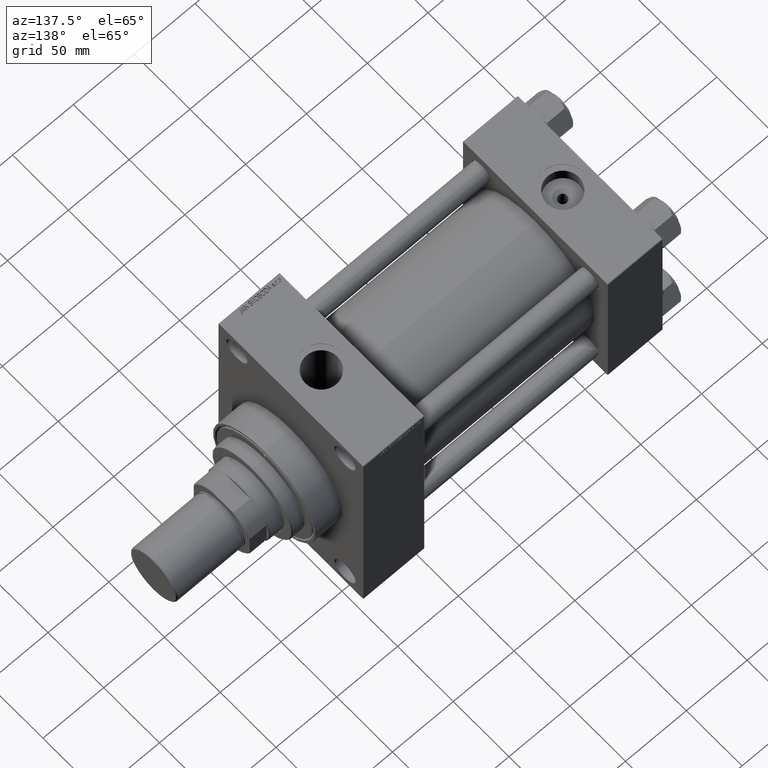
[diagram: clean part render]
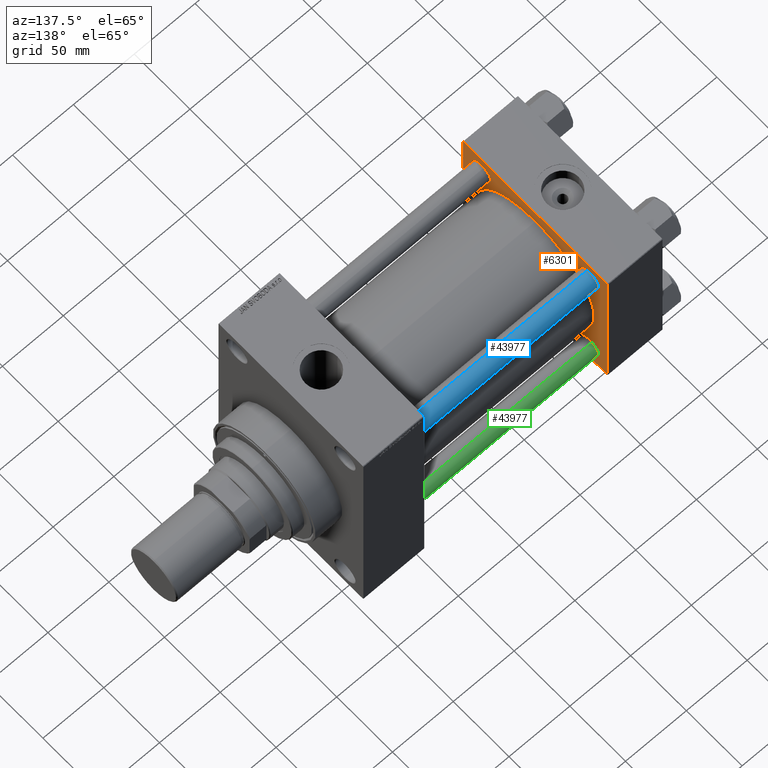
[diagram: same view with three faces highlighted in distinct colors, each labeled with its STEP entity id]
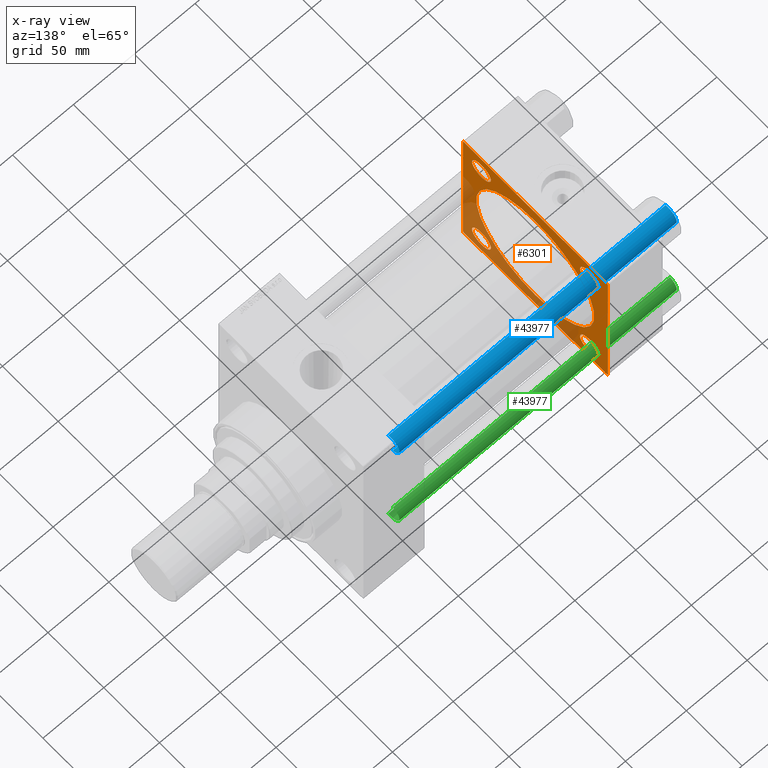
[diagram: x-ray of the same camera — body ghosted, the three highlighted faces saturated]
A machine part, auxiliary view with three faces highlighted in distinct colors.
The next image is the same camera in x-ray (body ghosted, the three faces saturated) — at least one of them is partly hidden behind the body in this view.
Their STEP definitions:

[orange] entity #6301 — the highlighted planar face has unit normal (-1, 0, 0).
#683 = LINE ( 'NONE', #19280, #10534 ) ;
#756 = ORIENTED_EDGE ( 'NONE', *, *, #30559, .T. ) ;
#878 = EDGE_LOOP ( 'NONE', ( #11257, #29567 ) ) ;
#1114 = CIRCLE ( 'NONE', #47246, 8.500000000000007105 ) ;
#1420 = AXIS2_PLACEMENT_3D ( 'NONE', #7972, #26102, #29785 ) ;
#1934 = ORIENTED_EDGE ( 'NONE', *, *, #6677, .T. ) ;
#2078 = VERTEX_POINT ( 'NONE', #14411 ) ;
#2269 = DIRECTION ( 'NONE',  ( -1.000000000000000000, 0.000000000000000000, -0.000000000000000000 ) ) ;
#2359 = CARTESIAN_POINT ( 'NONE',  ( 45.00000000000000000, 0.000000000000000000, 0.000000000000000000 ) ) ;
#2929 = DIRECTION ( 'NONE',  ( 0.000000000000000000, 0.7071067811865279218, -0.7071067811865671127 ) ) ;
#3026 = DIRECTION ( 'NONE',  ( 0.000000000000000000, 0.000000000000000000, -1.000000000000000000 ) ) ;
#3093 = FACE_OUTER_BOUND ( 'NONE', #40931, .T. ) ;
#3306 = VERTEX_POINT ( 'NONE', #29532 ) ;
#3805 = CARTESIAN_POINT ( 'NONE',  ( 45.00000000000000000, -48.44999999999999574, -48.45000000000003126 ) ) ;
#4105 = AXIS2_PLACEMENT_3D ( 'NONE', #17351, #25669, #6589 ) ;
#4269 = VERTEX_POINT ( 'NONE', #40021 ) ;
#4276 = CARTESIAN_POINT ( 'NONE',  ( 45.00000000000000000, -65.00000000000000000, 64.50000000000000000 ) ) ;
#4279 = VERTEX_POINT ( 'NONE', #28753 ) ;
#4306 = VERTEX_POINT ( 'NONE', #13081 ) ;
#4801 = EDGE_LOOP ( 'NONE', ( #7513, #8639 ) ) ;
#5203 = DIRECTION ( 'NONE',  ( 0.000000000000000000, -1.000000000000000000, -1.067522139062650425E-16 ) ) ;
#5531 = VERTEX_POINT ( 'NONE', #15472 ) ;
#5582 = VERTEX_POINT ( 'NONE', #36018 ) ;
#6301 = ADVANCED_FACE ( 'NONE', ( #47148, #40790, #22165, #6525, #14114, #3093 ), #47395, .F. ) ;
#6525 = FACE_BOUND ( 'NONE', #18172, .T. ) ;
#6589 = DIRECTION ( 'NONE',  ( 0.000000000000000000, 0.000000000000000000, 1.000000000000000000 ) ) ;
#6677 = EDGE_CURVE ( 'NONE', #5531, #5582, #8149, .T. ) ;
#6914 = DIRECTION ( 'NONE',  ( 0.000000000000000000, 0.000000000000000000, 1.000000000000000000 ) ) ;
#7264 = VECTOR ( 'NONE', #25244, 1000.000000000000114 ) ;
#7513 = ORIENTED_EDGE ( 'NONE', *, *, #23552, .T. ) ;
#7764 = CARTESIAN_POINT ( 'NONE',  ( 44.99999999999998579, -2.602085213965210642E-15, 0.000000000000000000 ) ) ;
#7885 = DIRECTION ( 'NONE',  ( 0.000000000000000000, 0.000000000000000000, 1.000000000000000000 ) ) ;
#7946 = LINE ( 'NONE', #4276, #30898 ) ;
#7972 = CARTESIAN_POINT ( 'NONE',  ( 45.00000000000000000, 48.45000000000000995, -48.45000000000001705 ) ) ;
#8046 = ORIENTED_EDGE ( 'NONE', *, *, #10780, .T. ) ;
#8149 = CIRCLE ( 'NONE', #13651, 8.500000000000007105 ) ;
#8231 = ORIENTED_EDGE ( 'NONE', *, *, #29336, .F. ) ;
#8617 = AXIS2_PLACEMENT_3D ( 'NONE', #15078, #11405, #48376 ) ;
#8639 = ORIENTED_EDGE ( 'NONE', *, *, #47282, .T. ) ;
#8886 = AXIS2_PLACEMENT_3D ( 'NONE', #2359, #17286, #13627 ) ;
#8956 = DIRECTION ( 'NONE',  ( -1.000000000000000000, 0.000000000000000000, -0.000000000000000000 ) ) ;
#9197 = CARTESIAN_POINT ( 'NONE',  ( 45.00000000000000000, -48.44999999999999574, -56.95000000000003837 ) ) ;
#9325 = VECTOR ( 'NONE', #20633, 1000.000000000000114 ) ;
#9931 = VECTOR ( 'NONE', #31341, 1000.000000000000000 ) ;
#10268 = EDGE_CURVE ( 'NONE', #18890, #32250, #45971, .T. ) ;
#10534 = VECTOR ( 'NONE', #34227, 1000.000000000000000 ) ;
#10621 = CARTESIAN_POINT ( 'NONE',  ( 45.00000000000000000, -65.00000000000000000, 65.00000000000000000 ) ) ;
#10780 = EDGE_CURVE ( 'NONE', #45149, #48216, #23804, .T. ) ;
#11083 = CARTESIAN_POINT ( 'NONE',  ( 45.00000000000000000, 48.45000000000000995, -48.45000000000001705 ) ) ;
#11257 = ORIENTED_EDGE ( 'NONE', *, *, #20853, .F. ) ;
#11365 = AXIS2_PLACEMENT_3D ( 'NONE', #7764, #15590, #18777 ) ;
#11405 = DIRECTION ( 'NONE',  ( -1.000000000000000000, 0.000000000000000000, -0.000000000000000000 ) ) ;
#11800 = DIRECTION ( 'NONE',  ( -1.000000000000000000, 0.000000000000000000, -0.000000000000000000 ) ) ;
#11983 = VERTEX_POINT ( 'NONE', #46989 ) ;
#13081 = CARTESIAN_POINT ( 'NONE',  ( 45.00000000000000000, -48.44999999999999574, -39.95000000000001705 ) ) ;
#13627 = DIRECTION ( 'NONE',  ( -0.000000000000000000, 0.000000000000000000, 1.000000000000000000 ) ) ;
#13651 = AXIS2_PLACEMENT_3D ( 'NONE', #41683, #41205, #19381 ) ;
#14114 = FACE_BOUND ( 'NONE', #878, .T. ) ;
#14354 = CIRCLE ( 'NONE', #33101, 8.500000000000007105 ) ;
#14411 = CARTESIAN_POINT ( 'NONE',  ( 45.00000000000000000, -64.49999999999994316, -65.00000000000000000 ) ) ;
#14477 = LINE ( 'NONE', #47270, #7264 ) ;
#14820 = CARTESIAN_POINT ( 'NONE',  ( 45.00000000000000000, 48.45000000000000995, -56.95000000000002416 ) ) ;
#15078 = CARTESIAN_POINT ( 'NONE',  ( 45.00000000000000000, 48.45000000000000995, 48.45000000000001705 ) ) ;
#15312 = CARTESIAN_POINT ( 'NONE',  ( 45.00000000000000000, -64.49999999999997158, 65.00000000000000000 ) ) ;
#15458 = ORIENTED_EDGE ( 'NONE', *, *, #33869, .T. ) ;
#15472 = CARTESIAN_POINT ( 'NONE',  ( 45.00000000000000000, -48.44999999999999574, 39.95000000000001705 ) ) ;
#15590 = DIRECTION ( 'NONE',  ( 1.000000000000000000, -0.000000000000000000, 0.000000000000000000 ) ) ;
#15740 = CARTESIAN_POINT ( 'NONE',  ( 45.00000000000000000, 65.00000000000000000, 65.00000000000001421 ) ) ;
#16497 = EDGE_LOOP ( 'NONE', ( #47737, #17939 ) ) ;
#16965 = LINE ( 'NONE', #39261, #9325 ) ;
#17286 = DIRECTION ( 'NONE',  ( -1.000000000000000000, 0.000000000000000000, -0.000000000000000000 ) ) ;
#17351 = CARTESIAN_POINT ( 'NONE',  ( 44.99999999999998579, -2.602085213965210642E-15, 0.000000000000000000 ) ) ;
#17939 = ORIENTED_EDGE ( 'NONE', *, *, #19368, .T. ) ;
#18172 = EDGE_LOOP ( 'NONE', ( #19960, #45145 ) ) ;
#18180 = VECTOR ( 'NONE', #3026, 1000.000000000000000 ) ;
#18378 = CIRCLE ( 'NONE', #11365, 53.00000000000000711 ) ;
#18725 = DIRECTION ( 'NONE',  ( -0.000000000000000000, -0.7071067811865672237, -0.7071067811865279218 ) ) ;
#18777 = DIRECTION ( 'NONE',  ( 0.000000000000000000, 0.000000000000000000, 1.000000000000000000 ) ) ;
#18890 = VERTEX_POINT ( 'NONE', #14820 ) ;
#19197 = DIRECTION ( 'NONE',  ( -1.000000000000000000, 0.000000000000000000, -0.000000000000000000 ) ) ;
#19280 = CARTESIAN_POINT ( 'NONE',  ( 45.00000000000000000, 65.00000000000000000, 65.00000000000001421 ) ) ;
#19368 = EDGE_CURVE ( 'NONE', #32250, #18890, #28321, .T. ) ;
#19381 = DIRECTION ( 'NONE',  ( 0.000000000000000000, 0.000000000000000000, 1.000000000000000000 ) ) ;
#19960 = ORIENTED_EDGE ( 'NONE', *, *, #45966, .T. ) ;
#20176 = EDGE_CURVE ( 'NONE', #4279, #21545, #28737, .T. ) ;
#20306 = CARTESIAN_POINT ( 'NONE',  ( 45.00000000000000000, 65.00000000000000000, -64.99999999999998579 ) ) ;
#20569 = EDGE_CURVE ( 'NONE', #11983, #4269, #14477, .T. ) ;
#20573 = ORIENTED_EDGE ( 'NONE', *, *, #43735, .T. ) ;
#20633 = DIRECTION ( 'NONE',  ( 0.000000000000000000, -0.7071067811865474617, 0.7071067811865474617 ) ) ;
#20853 = EDGE_CURVE ( 'NONE', #21040, #3306, #32270, .T. ) ;
#21040 = VERTEX_POINT ( 'NONE', #29709 ) ;
#21530 = CARTESIAN_POINT ( 'NONE',  ( 45.00000000000000000, -64.49999999999994316, -65.00000000000000000 ) ) ;
#21545 = VERTEX_POINT ( 'NONE', #34656 ) ;
#22165 = FACE_BOUND ( 'NONE', #38823, .T. ) ;
#22864 = ORIENTED_EDGE ( 'NONE', *, *, #20569, .T. ) ;
#23318 = ORIENTED_EDGE ( 'NONE', *, *, #34798, .F. ) ;
#23552 = EDGE_CURVE ( 'NONE', #28595, #4306, #32219, .T. ) ;
#23804 = LINE ( 'NONE', #15740, #44406 ) ;
#25244 = DIRECTION ( 'NONE',  ( -0.000000000000000000, 0.7071067811865474617, 0.7071067811865474617 ) ) ;
#25669 = DIRECTION ( 'NONE',  ( 1.000000000000000000, -0.000000000000000000, 0.000000000000000000 ) ) ;
#26102 = DIRECTION ( 'NONE',  ( -1.000000000000000000, 0.000000000000000000, -0.000000000000000000 ) ) ;
#26126 = ORIENTED_EDGE ( 'NONE', *, *, #26162, .T. ) ;
#26162 = EDGE_CURVE ( 'NONE', #5582, #5531, #14354, .T. ) ;
#26315 = VECTOR ( 'NONE', #2929, 1000.000000000000000 ) ;
#26673 = CARTESIAN_POINT ( 'NONE',  ( 45.00000000000000000, 48.45000000000000995, 56.95000000000002416 ) ) ;
#26794 = DIRECTION ( 'NONE',  ( 0.000000000000000000, 0.000000000000000000, 1.000000000000000000 ) ) ;
#27420 = CIRCLE ( 'NONE', #47767, 8.500000000000007105 ) ;
#28321 = CIRCLE ( 'NONE', #44722, 8.500000000000007105 ) ;
#28539 = EDGE_CURVE ( 'NONE', #44596, #37876, #1114, .T. ) ;
#28595 = VERTEX_POINT ( 'NONE', #9197 ) ;
#28737 = LINE ( 'NONE', #10621, #18180 ) ;
#28753 = CARTESIAN_POINT ( 'NONE',  ( 45.00000000000000000, -65.00000000000000000, 64.50000000000000000 ) ) ;
#29336 = EDGE_CURVE ( 'NONE', #36064, #4269, #683, .T. ) ;
#29532 = CARTESIAN_POINT ( 'NONE',  ( 44.99999999999998579, 3.888542821515762466E-15, -53.00000000000000711 ) ) ;
#29559 = CARTESIAN_POINT ( 'NONE',  ( 45.00000000000000000, 48.45000000000000995, 39.95000000000000284 ) ) ;
#29567 = ORIENTED_EDGE ( 'NONE', *, *, #30304, .F. ) ;
#29709 = CARTESIAN_POINT ( 'NONE',  ( 44.99999999999998579, -2.602085213965210642E-15, 53.00000000000000711 ) ) ;
#29750 = CIRCLE ( 'NONE', #8617, 8.500000000000007105 ) ;
#29785 = DIRECTION ( 'NONE',  ( 0.000000000000000000, 0.000000000000000000, 1.000000000000000000 ) ) ;
#30304 = EDGE_CURVE ( 'NONE', #3306, #21040, #18378, .T. ) ;
#30559 = EDGE_CURVE ( 'NONE', #48216, #4279, #7946, .T. ) ;
#30898 = VECTOR ( 'NONE', #18725, 1000.000000000000000 ) ;
#31233 = CARTESIAN_POINT ( 'NONE',  ( 45.00000000000000000, 48.45000000000000995, 48.45000000000001705 ) ) ;
#31341 = DIRECTION ( 'NONE',  ( 0.000000000000000000, -1.000000000000000000, -1.067522139062650425E-16 ) ) ;
#32219 = CIRCLE ( 'NONE', #40841, 8.500000000000007105 ) ;
#32250 = VERTEX_POINT ( 'NONE', #47594 ) ;
#32270 = CIRCLE ( 'NONE', #4105, 53.00000000000000711 ) ;
#33101 = AXIS2_PLACEMENT_3D ( 'NONE', #40463, #2269, #6914 ) ;
#33869 = EDGE_CURVE ( 'NONE', #21545, #2078, #47967, .T. ) ;
#34227 = DIRECTION ( 'NONE',  ( 0.000000000000000000, 0.000000000000000000, -1.000000000000000000 ) ) ;
#34627 = CARTESIAN_POINT ( 'NONE',  ( 45.00000000000000000, 64.49999999999997158, 65.00000000000001421 ) ) ;
#34656 = CARTESIAN_POINT ( 'NONE',  ( 45.00000000000000000, -65.00000000000000000, -64.49999999999991473 ) ) ;
#34798 = EDGE_CURVE ( 'NONE', #11983, #2078, #44660, .T. ) ;
#35432 = CARTESIAN_POINT ( 'NONE',  ( 45.00000000000000000, 65.00000000000000000, 64.49999999999998579 ) ) ;
#36018 = CARTESIAN_POINT ( 'NONE',  ( 45.00000000000000000, -48.44999999999999574, 56.95000000000003837 ) ) ;
#36064 = VERTEX_POINT ( 'NONE', #35432 ) ;
#37231 = ORIENTED_EDGE ( 'NONE', *, *, #20176, .T. ) ;
#37876 = VERTEX_POINT ( 'NONE', #29559 ) ;
#38823 = EDGE_LOOP ( 'NONE', ( #1934, #26126 ) ) ;
#39039 = CARTESIAN_POINT ( 'NONE',  ( 45.00000000000000000, -48.44999999999999574, -48.45000000000003126 ) ) ;
#39261 = CARTESIAN_POINT ( 'NONE',  ( 45.00000000000000000, 64.49999999999997158, 65.00000000000001421 ) ) ;
#40021 = CARTESIAN_POINT ( 'NONE',  ( 45.00000000000000000, 65.00000000000000000, -64.49999999999995737 ) ) ;
#40463 = CARTESIAN_POINT ( 'NONE',  ( 45.00000000000000000, -48.44999999999999574, 48.45000000000003126 ) ) ;
#40786 = DIRECTION ( 'NONE',  ( -1.000000000000000000, 0.000000000000000000, -0.000000000000000000 ) ) ;
#40790 = FACE_BOUND ( 'NONE', #16497, .T. ) ;
#40841 = AXIS2_PLACEMENT_3D ( 'NONE', #39039, #19197, #26794 ) ;
#40931 = EDGE_LOOP ( 'NONE', ( #23318, #22864, #8231, #20573, #8046, #756, #37231, #15458 ) ) ;
#41205 = DIRECTION ( 'NONE',  ( -1.000000000000000000, 0.000000000000000000, -0.000000000000000000 ) ) ;
#41683 = CARTESIAN_POINT ( 'NONE',  ( 45.00000000000000000, -48.44999999999999574, 48.45000000000003126 ) ) ;
#43726 = DIRECTION ( 'NONE',  ( 0.000000000000000000, 0.000000000000000000, 1.000000000000000000 ) ) ;
#43735 = EDGE_CURVE ( 'NONE', #36064, #45149, #16965, .T. ) ;
#44406 = VECTOR ( 'NONE', #5203, 1000.000000000000000 ) ;
#44596 = VERTEX_POINT ( 'NONE', #26673 ) ;
#44660 = LINE ( 'NONE', #20306, #9931 ) ;
#44722 = AXIS2_PLACEMENT_3D ( 'NONE', #11083, #11800, #7885 ) ;
#45145 = ORIENTED_EDGE ( 'NONE', *, *, #28539, .T. ) ;
#45149 = VERTEX_POINT ( 'NONE', #34627 ) ;
#45966 = EDGE_CURVE ( 'NONE', #37876, #44596, #29750, .T. ) ;
#45971 = CIRCLE ( 'NONE', #1420, 8.500000000000007105 ) ;
#46161 = DIRECTION ( 'NONE',  ( 0.000000000000000000, 0.000000000000000000, 1.000000000000000000 ) ) ;
#46989 = CARTESIAN_POINT ( 'NONE',  ( 45.00000000000000000, 64.49999999999997158, -64.99999999999998579 ) ) ;
#47148 = FACE_BOUND ( 'NONE', #4801, .T. ) ;
#47246 = AXIS2_PLACEMENT_3D ( 'NONE', #31233, #8956, #46161 ) ;
#47270 = CARTESIAN_POINT ( 'NONE',  ( 45.00000000000000000, 65.00000000000000000, -64.49999999999995737 ) ) ;
#47282 = EDGE_CURVE ( 'NONE', #4306, #28595, #27420, .T. ) ;
#47395 = PLANE ( 'NONE',  #8886 ) ;
#47594 = CARTESIAN_POINT ( 'NONE',  ( 45.00000000000000000, 48.45000000000000995, -39.95000000000000284 ) ) ;
#47737 = ORIENTED_EDGE ( 'NONE', *, *, #10268, .T. ) ;
#47767 = AXIS2_PLACEMENT_3D ( 'NONE', #3805, #40786, #43726 ) ;
#47967 = LINE ( 'NONE', #21530, #26315 ) ;
#48216 = VERTEX_POINT ( 'NONE', #15312 ) ;
#48376 = DIRECTION ( 'NONE',  ( 0.000000000000000000, 0.000000000000000000, 1.000000000000000000 ) ) ;

[blue] entity #43977 — the highlighted cylindrical surface (edge-blend (fillet) strip) has radius 8 mm, axis along (-1, -0, 0).
#1907 = CARTESIAN_POINT ( 'NONE',  ( 8.000000000000000000, 9.797174393178823685E-16, 229.0000000000000000 ) ) ;
#5572 = LINE ( 'NONE', #42784, #45109 ) ;
#5911 = CARTESIAN_POINT ( 'NONE',  ( 8.000000000000000000, 9.797174393178823685E-16, 0.5000000000001392220 ) ) ;
#6895 = EDGE_CURVE ( 'NONE', #21291, #14211, #48030, .T. ) ;
#7844 = DIRECTION ( 'NONE',  ( 1.000000000000000000, 0.000000000000000000, 0.000000000000000000 ) ) ;
#7952 = DIRECTION ( 'NONE',  ( -1.000000000000000000, 0.000000000000000000, 0.000000000000000000 ) ) ;
#9980 = DIRECTION ( 'NONE',  ( -0.000000000000000000, -0.000000000000000000, -1.000000000000000000 ) ) ;
#11132 = ORIENTED_EDGE ( 'NONE', *, *, #6895, .T. ) ;
#13303 = EDGE_CURVE ( 'NONE', #38536, #18820, #34330, .T. ) ;
#13658 = DIRECTION ( 'NONE',  ( -0.000000000000000000, -0.000000000000000000, -1.000000000000000000 ) ) ;
#14076 = ORIENTED_EDGE ( 'NONE', *, *, #37738, .F. ) ;
#14211 = VERTEX_POINT ( 'NONE', #28927 ) ;
#16016 = CARTESIAN_POINT ( 'NONE',  ( 0.000000000000000000, 0.000000000000000000, 229.0000000000000000 ) ) ;
#18820 = VERTEX_POINT ( 'NONE', #35158 ) ;
#20847 = VECTOR ( 'NONE', #9980, 1000.000000000000000 ) ;
#21291 = VERTEX_POINT ( 'NONE', #38497 ) ;
#25908 = DIRECTION ( 'NONE',  ( 0.000000000000000000, 0.000000000000000000, -1.000000000000000000 ) ) ;
#26153 = AXIS2_PLACEMENT_3D ( 'NONE', #47708, #25908, #44758 ) ;
#26441 = CARTESIAN_POINT ( 'NONE',  ( 0.000000000000000000, 0.000000000000000000, 0.5000000000001392220 ) ) ;
#26548 = FACE_OUTER_BOUND ( 'NONE', #33185, .T. ) ;
#28927 = CARTESIAN_POINT ( 'NONE',  ( 8.000000000000000000, 9.797174393178823685E-16, 228.5000000000000853 ) ) ;
#32807 = AXIS2_PLACEMENT_3D ( 'NONE', #16016, #41493, #7952 ) ;
#33185 = EDGE_LOOP ( 'NONE', ( #11132, #37823, #35435, #14076 ) ) ;
#34330 = CIRCLE ( 'NONE', #44510, 8.000000000000000000 ) ;
#35158 = CARTESIAN_POINT ( 'NONE',  ( -8.000000000000000000, 0.000000000000000000, 0.5000000000001392220 ) ) ;
#35435 = ORIENTED_EDGE ( 'NONE', *, *, #13303, .T. ) ;
#37738 = EDGE_CURVE ( 'NONE', #21291, #18820, #5572, .T. ) ;
#37744 = EDGE_CURVE ( 'NONE', #14211, #38536, #43511, .T. ) ;
#37823 = ORIENTED_EDGE ( 'NONE', *, *, #37744, .T. ) ;
#38307 = CYLINDRICAL_SURFACE ( 'NONE', #32807, 8.000000000000000000 ) ;
#38497 = CARTESIAN_POINT ( 'NONE',  ( -8.000000000000000000, 0.000000000000000000, 228.5000000000000853 ) ) ;
#38536 = VERTEX_POINT ( 'NONE', #5911 ) ;
#41385 = DIRECTION ( 'NONE',  ( -0.000000000000000000, -0.000000000000000000, 1.000000000000000000 ) ) ;
#41493 = DIRECTION ( 'NONE',  ( -0.000000000000000000, -0.000000000000000000, -1.000000000000000000 ) ) ;
#42784 = CARTESIAN_POINT ( 'NONE',  ( -8.000000000000000000, 0.000000000000000000, 229.0000000000000000 ) ) ;
#43511 = LINE ( 'NONE', #1907, #20847 ) ;
#43977 = ADVANCED_FACE ( 'NONE', ( #26548 ), #38307, .T. ) ;
#44510 = AXIS2_PLACEMENT_3D ( 'NONE', #26441, #41385, #7844 ) ;
#44758 = DIRECTION ( 'NONE',  ( 1.000000000000000000, 0.000000000000000000, 0.000000000000000000 ) ) ;
#45109 = VECTOR ( 'NONE', #13658, 1000.000000000000000 ) ;
#47708 = CARTESIAN_POINT ( 'NONE',  ( 0.000000000000000000, 0.000000000000000000, 228.5000000000000853 ) ) ;
#48030 = CIRCLE ( 'NONE', #26153, 8.000000000000000000 ) ;

[green] entity #43977 — the highlighted cylindrical surface (edge-blend (fillet) strip) has radius 8 mm, axis along (1, -0, 0).
#1907 = CARTESIAN_POINT ( 'NONE',  ( 8.000000000000000000, 9.797174393178823685E-16, 229.0000000000000000 ) ) ;
#5572 = LINE ( 'NONE', #42784, #45109 ) ;
#5911 = CARTESIAN_POINT ( 'NONE',  ( 8.000000000000000000, 9.797174393178823685E-16, 0.5000000000001392220 ) ) ;
#6895 = EDGE_CURVE ( 'NONE', #21291, #14211, #48030, .T. ) ;
#7844 = DIRECTION ( 'NONE',  ( 1.000000000000000000, 0.000000000000000000, 0.000000000000000000 ) ) ;
#7952 = DIRECTION ( 'NONE',  ( -1.000000000000000000, 0.000000000000000000, 0.000000000000000000 ) ) ;
#9980 = DIRECTION ( 'NONE',  ( -0.000000000000000000, -0.000000000000000000, -1.000000000000000000 ) ) ;
#11132 = ORIENTED_EDGE ( 'NONE', *, *, #6895, .T. ) ;
#13303 = EDGE_CURVE ( 'NONE', #38536, #18820, #34330, .T. ) ;
#13658 = DIRECTION ( 'NONE',  ( -0.000000000000000000, -0.000000000000000000, -1.000000000000000000 ) ) ;
#14076 = ORIENTED_EDGE ( 'NONE', *, *, #37738, .F. ) ;
#14211 = VERTEX_POINT ( 'NONE', #28927 ) ;
#16016 = CARTESIAN_POINT ( 'NONE',  ( 0.000000000000000000, 0.000000000000000000, 229.0000000000000000 ) ) ;
#18820 = VERTEX_POINT ( 'NONE', #35158 ) ;
#20847 = VECTOR ( 'NONE', #9980, 1000.000000000000000 ) ;
#21291 = VERTEX_POINT ( 'NONE', #38497 ) ;
#25908 = DIRECTION ( 'NONE',  ( 0.000000000000000000, 0.000000000000000000, -1.000000000000000000 ) ) ;
#26153 = AXIS2_PLACEMENT_3D ( 'NONE', #47708, #25908, #44758 ) ;
#26441 = CARTESIAN_POINT ( 'NONE',  ( 0.000000000000000000, 0.000000000000000000, 0.5000000000001392220 ) ) ;
#26548 = FACE_OUTER_BOUND ( 'NONE', #33185, .T. ) ;
#28927 = CARTESIAN_POINT ( 'NONE',  ( 8.000000000000000000, 9.797174393178823685E-16, 228.5000000000000853 ) ) ;
#32807 = AXIS2_PLACEMENT_3D ( 'NONE', #16016, #41493, #7952 ) ;
#33185 = EDGE_LOOP ( 'NONE', ( #11132, #37823, #35435, #14076 ) ) ;
#34330 = CIRCLE ( 'NONE', #44510, 8.000000000000000000 ) ;
#35158 = CARTESIAN_POINT ( 'NONE',  ( -8.000000000000000000, 0.000000000000000000, 0.5000000000001392220 ) ) ;
#35435 = ORIENTED_EDGE ( 'NONE', *, *, #13303, .T. ) ;
#37738 = EDGE_CURVE ( 'NONE', #21291, #18820, #5572, .T. ) ;
#37744 = EDGE_CURVE ( 'NONE', #14211, #38536, #43511, .T. ) ;
#37823 = ORIENTED_EDGE ( 'NONE', *, *, #37744, .T. ) ;
#38307 = CYLINDRICAL_SURFACE ( 'NONE', #32807, 8.000000000000000000 ) ;
#38497 = CARTESIAN_POINT ( 'NONE',  ( -8.000000000000000000, 0.000000000000000000, 228.5000000000000853 ) ) ;
#38536 = VERTEX_POINT ( 'NONE', #5911 ) ;
#41385 = DIRECTION ( 'NONE',  ( -0.000000000000000000, -0.000000000000000000, 1.000000000000000000 ) ) ;
#41493 = DIRECTION ( 'NONE',  ( -0.000000000000000000, -0.000000000000000000, -1.000000000000000000 ) ) ;
#42784 = CARTESIAN_POINT ( 'NONE',  ( -8.000000000000000000, 0.000000000000000000, 229.0000000000000000 ) ) ;
#43511 = LINE ( 'NONE', #1907, #20847 ) ;
#43977 = ADVANCED_FACE ( 'NONE', ( #26548 ), #38307, .T. ) ;
#44510 = AXIS2_PLACEMENT_3D ( 'NONE', #26441, #41385, #7844 ) ;
#44758 = DIRECTION ( 'NONE',  ( 1.000000000000000000, 0.000000000000000000, 0.000000000000000000 ) ) ;
#45109 = VECTOR ( 'NONE', #13658, 1000.000000000000000 ) ;
#47708 = CARTESIAN_POINT ( 'NONE',  ( 0.000000000000000000, 0.000000000000000000, 228.5000000000000853 ) ) ;
#48030 = CIRCLE ( 'NONE', #26153, 8.000000000000000000 ) ;